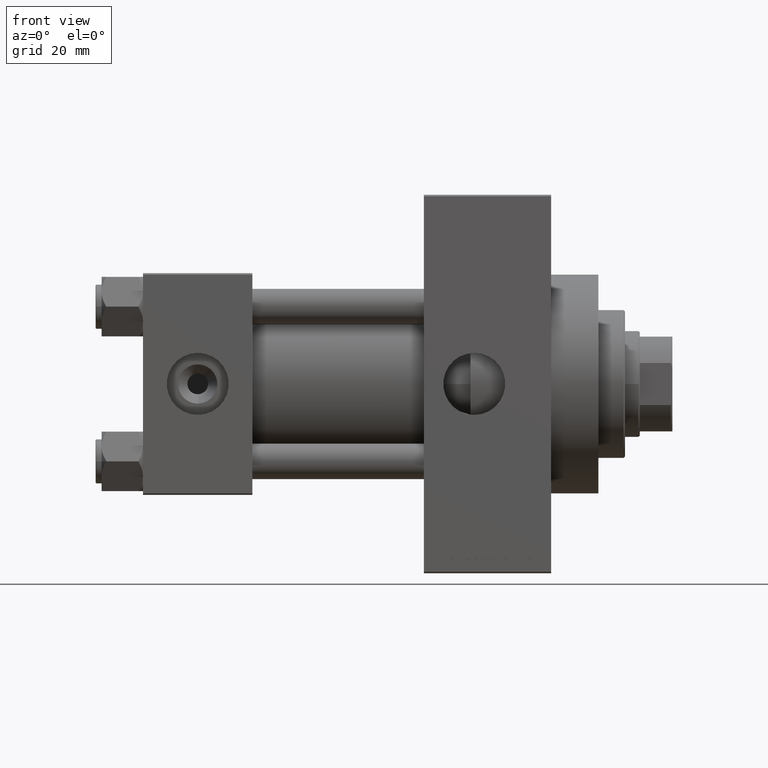
[diagram: clean part render]
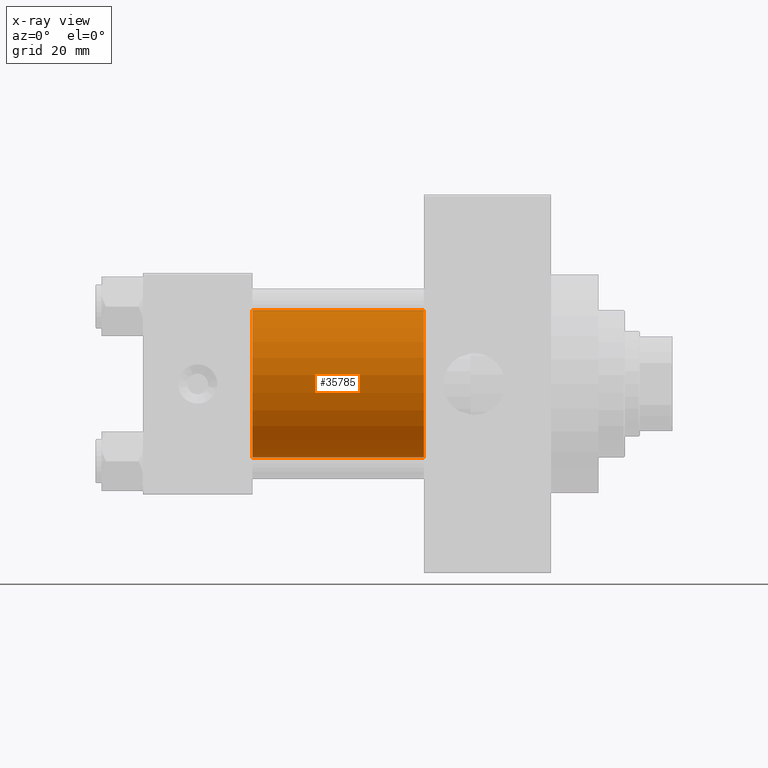
[diagram: x-ray — body ghosted, one internal face saturated and labeled with its STEP entity id]
A machine part, front view, then the same camera in x-ray: the body is ghosted and one INTERNAL B-rep face — a face not visible from any outside direction — is saturated and labeled: STEP entity #35785.
In plain terms, the highlighted cylindrical surface (partial cylindrical patch) has radius 25 mm, axis along (-1, -0, -0).
Its self-contained STEP definition (entity closure, byte-faithful):
#483 = DIRECTION ( 'NONE',  ( 1.000000000000000000, 0.000000000000000000, 0.000000000000000000 ) ) ;
#1708 = FACE_OUTER_BOUND ( 'NONE', #25615, .T. ) ;
#3199 = EDGE_CURVE ( 'NONE', #37987, #7782, #16498, .T. ) ;
#3315 = AXIS2_PLACEMENT_3D ( 'NONE', #11432, #483, #42598 ) ;
#4060 = VERTEX_POINT ( 'NONE', #43975 ) ;
#5671 = LINE ( 'NONE', #31859, #37589 ) ;
#5986 = EDGE_CURVE ( 'NONE', #4060, #7782, #41429, .T. ) ;
#7782 = VERTEX_POINT ( 'NONE', #19010 ) ;
#10305 = EDGE_CURVE ( 'NONE', #19329, #4060, #5671, .T. ) ;
#11199 = DIRECTION ( 'NONE',  ( 1.000000000000000000, 0.000000000000000000, 0.000000000000000000 ) ) ;
#11432 = CARTESIAN_POINT ( 'NONE',  ( 37.00000000000000000, -2.602085213965210642E-15, 0.000000000000000000 ) ) ;
#11958 = AXIS2_PLACEMENT_3D ( 'NONE', #32133, #13161, #28386 ) ;
#13161 = DIRECTION ( 'NONE',  ( -1.000000000000000000, -0.000000000000000000, -0.000000000000000000 ) ) ;
#14335 = VECTOR ( 'NONE', #47393, 1000.000000000000000 ) ;
#16498 = LINE ( 'NONE', #20248, #14335 ) ;
#16916 = CYLINDRICAL_SURFACE ( 'NONE', #11958, 25.00000000000000000 ) ;
#19010 = CARTESIAN_POINT ( 'NONE',  ( 37.00000000000000000, 4.595317839031718093E-16, -25.00000000000000000 ) ) ;
#19329 = VERTEX_POINT ( 'NONE', #34313 ) ;
#20248 = CARTESIAN_POINT ( 'NONE',  ( 95.00000000000000000, 4.595317839031718093E-16, -25.00000000000000000 ) ) ;
#21979 = EDGE_CURVE ( 'NONE', #19329, #37987, #45933, .T. ) ;
#25615 = EDGE_LOOP ( 'NONE', ( #32760, #28203, #39789, #43877 ) ) ;
#28203 = ORIENTED_EDGE ( 'NONE', *, *, #3199, .T. ) ;
#28386 = DIRECTION ( 'NONE',  ( 0.000000000000000000, 0.000000000000000000, 1.000000000000000000 ) ) ;
#31859 = CARTESIAN_POINT ( 'NONE',  ( 95.00000000000000000, -2.602085213965210642E-15, 25.00000000000000000 ) ) ;
#32133 = CARTESIAN_POINT ( 'NONE',  ( 95.00000000000000000, -2.602085213965210642E-15, 0.000000000000000000 ) ) ;
#32760 = ORIENTED_EDGE ( 'NONE', *, *, #21979, .T. ) ;
#34313 = CARTESIAN_POINT ( 'NONE',  ( 95.00000000000000000, -2.602085213965210642E-15, 25.00000000000000000 ) ) ;
#35759 = CARTESIAN_POINT ( 'NONE',  ( 95.00000000000000000, 4.595317839031718093E-16, -25.00000000000000000 ) ) ;
#35785 = ADVANCED_FACE ( 'NONE', ( #1708 ), #16916, .F. ) ;
#36915 = CARTESIAN_POINT ( 'NONE',  ( 95.00000000000000000, -2.602085213965210642E-15, 0.000000000000000000 ) ) ;
#37589 = VECTOR ( 'NONE', #43569, 1000.000000000000000 ) ;
#37907 = DIRECTION ( 'NONE',  ( 0.000000000000000000, 0.000000000000000000, -1.000000000000000000 ) ) ;
#37987 = VERTEX_POINT ( 'NONE', #35759 ) ;
#39789 = ORIENTED_EDGE ( 'NONE', *, *, #5986, .F. ) ;
#41429 = CIRCLE ( 'NONE', #3315, 25.00000000000000000 ) ;
#42598 = DIRECTION ( 'NONE',  ( 0.000000000000000000, 0.000000000000000000, -1.000000000000000000 ) ) ;
#43564 = AXIS2_PLACEMENT_3D ( 'NONE', #36915, #11199, #37907 ) ;
#43569 = DIRECTION ( 'NONE',  ( -1.000000000000000000, -0.000000000000000000, -0.000000000000000000 ) ) ;
#43877 = ORIENTED_EDGE ( 'NONE', *, *, #10305, .F. ) ;
#43975 = CARTESIAN_POINT ( 'NONE',  ( 37.00000000000000000, -2.602085213965210642E-15, 25.00000000000000000 ) ) ;
#45933 = CIRCLE ( 'NONE', #43564, 25.00000000000000000 ) ;
#47393 = DIRECTION ( 'NONE',  ( -1.000000000000000000, -0.000000000000000000, -0.000000000000000000 ) ) ;